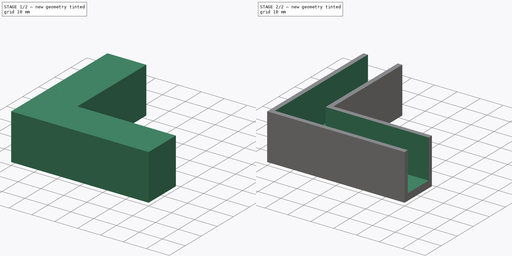
[diagram: build sequence overview — one tinted view per stage of 2, left to right]
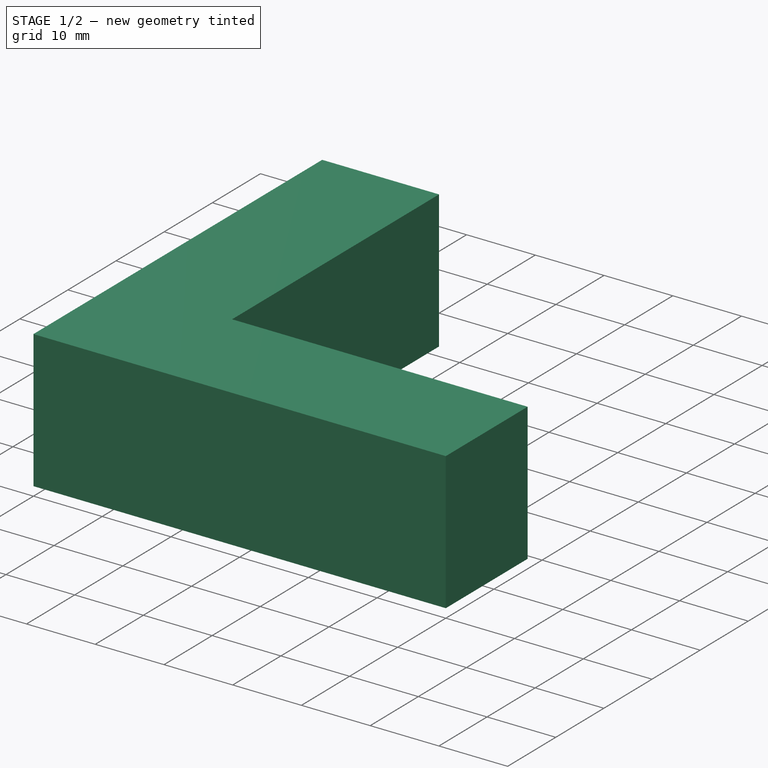
[diagram: stage 1 of 2 — iso view after this stage's code; geometry added in this stage tinted green]
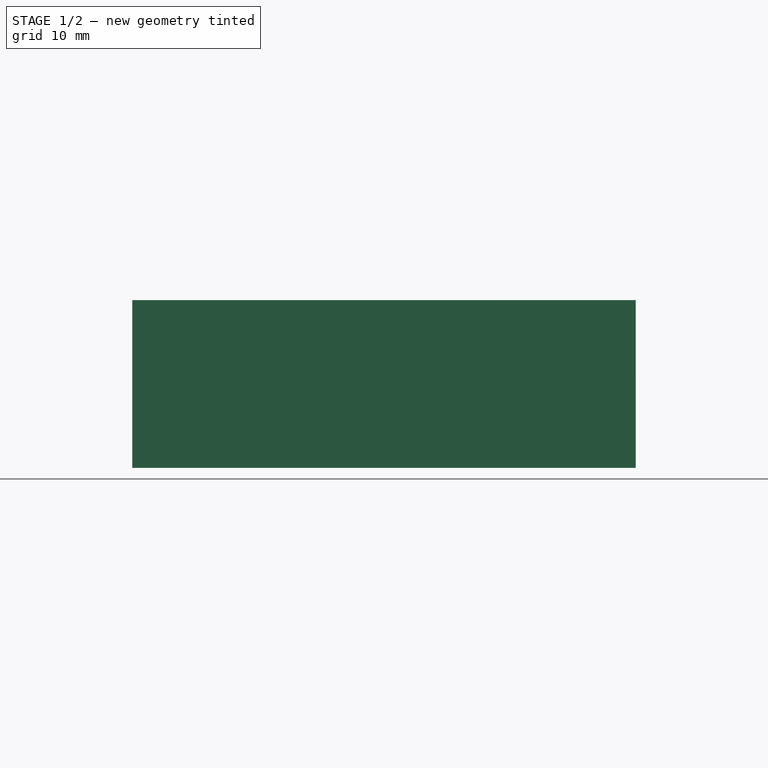
[diagram: stage 1 of 2 — front view after this stage's code; geometry added in this stage tinted green]
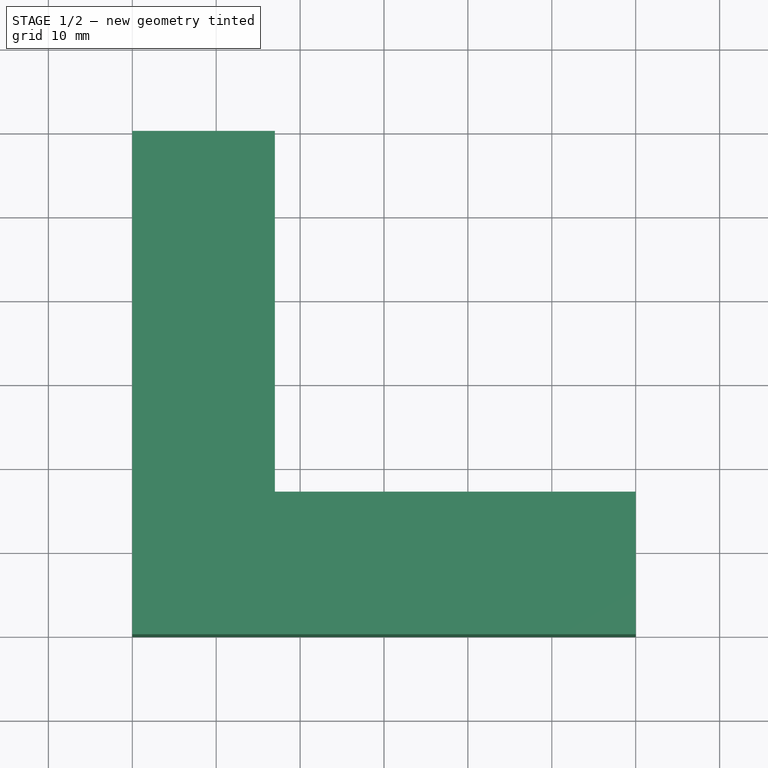
[diagram: stage 1 of 2 — top view after this stage's code; geometry added in this stage tinted green]
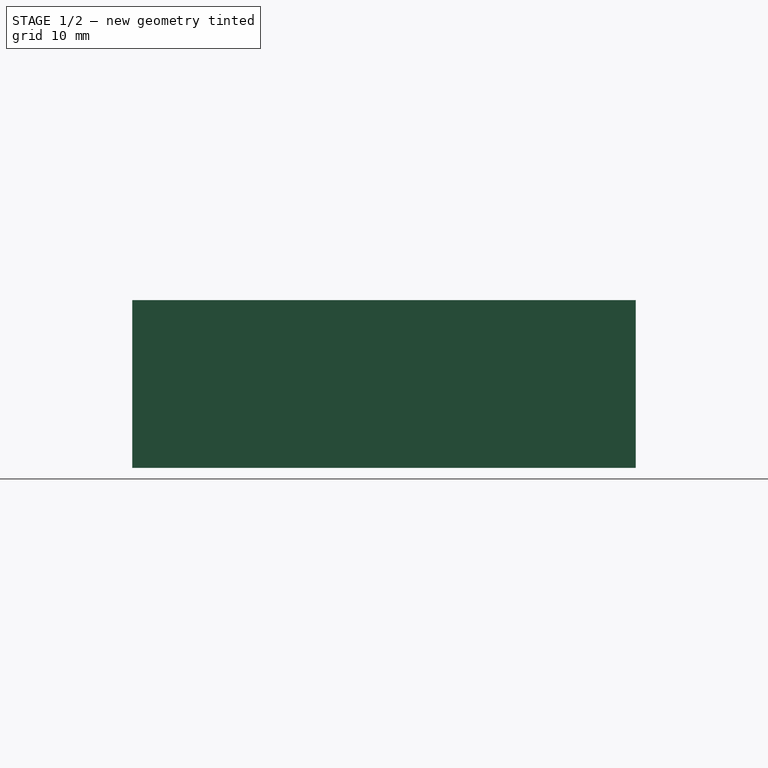
[diagram: stage 1 of 2 — right view after this stage's code; geometry added in this stage tinted green]
FCSTD DOCUMENT
Label: printercasefeet
objects: Sketcher::SketchObject×2, PartDesign::Pad×1, PartDesign::Pocket×1
note: 5 computed .brp shape members not serialized (recipe doc carries the construction recipe); baked Part::Feature solids carry a one-line shape summary decoded from their .brp

FEATURE [Sketcher::SketchObject] Sketch
  sketch-geometry (6):
    g0: LineSegment StartX=0 StartY=60 StartZ=0 EndX=0 EndY=0 EndZ=0
    g1: LineSegment StartX=0 StartY=0 StartZ=0 EndX=60 EndY=0 EndZ=0
    g2: LineSegment StartX=60 StartY=0 StartZ=0 EndX=60 EndY=17 EndZ=0
    g3: LineSegment StartX=60 StartY=17 StartZ=0 EndX=17 EndY=17 EndZ=0
    g4: LineSegment StartX=17 StartY=17 StartZ=0 EndX=17 EndY=60 EndZ=0
    g5: LineSegment StartX=17 StartY=60 StartZ=0 EndX=0 EndY=60 EndZ=0
  constraints (18):
    c: Vertical(g0)
    c: Coincident(g0,g1)
    c: Horizontal(g1)
    c: Coincident(g1,g2)
    c: Vertical(g2)
    c: Coincident(g2,g3)
    c: Horizontal(g3)
    c: Coincident(g3,g4)
    c: Vertical(g4)
    c: Coincident(g4,g5)
    c: Coincident(g0,g5)
    c: DistanceX(g0) = 0
    c: DistanceY(g0) = 0
    c: Equal(g0,g1)
    c: Horizontal(g5)
    c: Equal(g5,g2)
    c: DistanceX(g5) = -17
    c: DistanceY(g0) = -60
FEATURE [PartDesign::Pad] Pad
  Length = 20
  MirroredExtent = false
  Sketch = -> Sketch
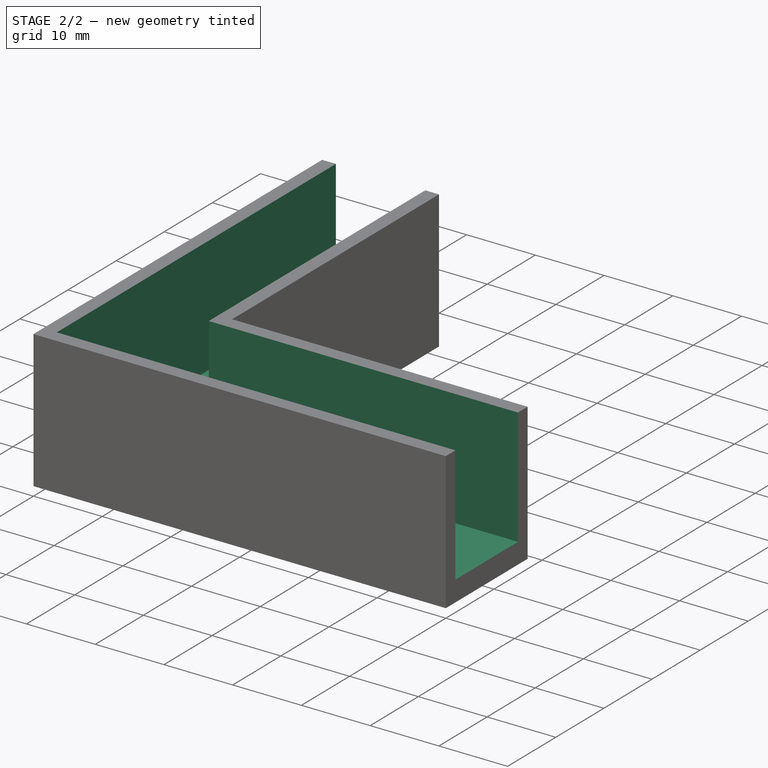
[diagram: stage 2 of 2 — iso view after this stage's code; geometry added in this stage tinted green]
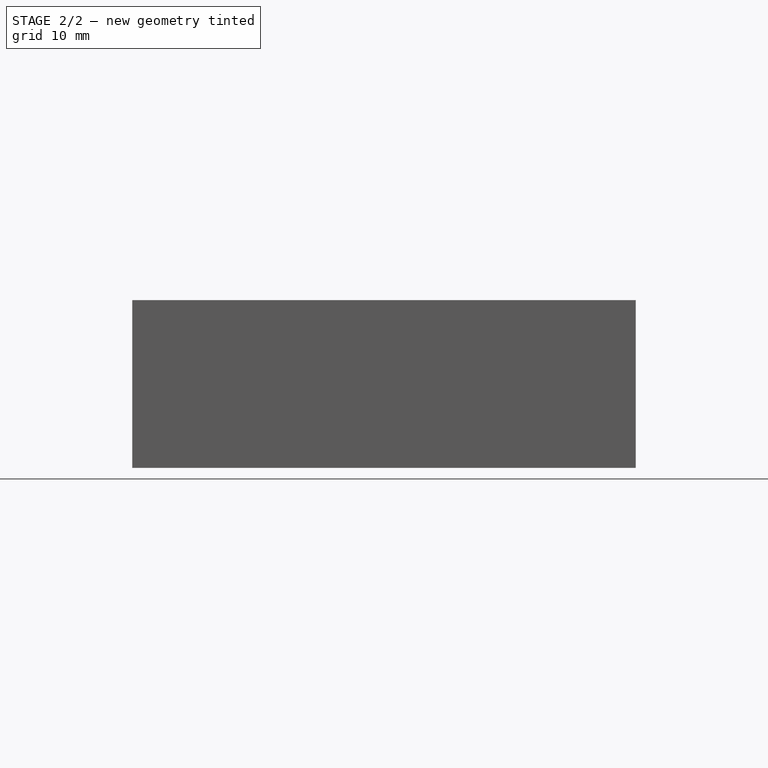
[diagram: stage 2 of 2 — front view after this stage's code; geometry added in this stage tinted green]
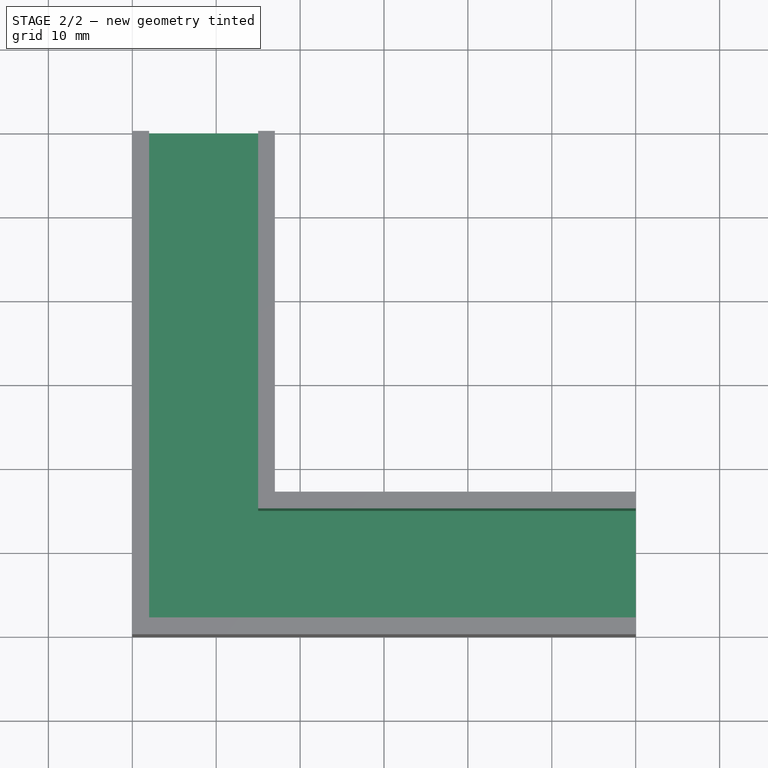
[diagram: stage 2 of 2 — top view after this stage's code; geometry added in this stage tinted green]
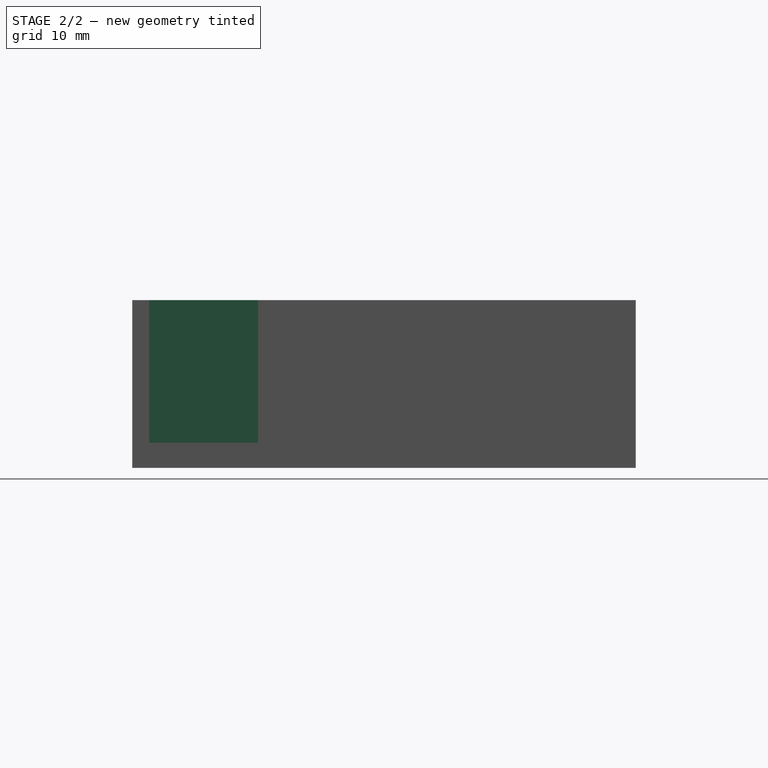
[diagram: stage 2 of 2 — right view after this stage's code; geometry added in this stage tinted green]
FEATURE [Sketcher::SketchObject] Sketch001
  Placement = pos=(0,0,20) rot=(0,0,1;0rad)
  Support = -> Pad [Face8]
  sketch-geometry (6):
    g0: LineSegment StartX=2 StartY=2 StartZ=0 EndX=2 EndY=60 EndZ=0
    g1: LineSegment StartX=2 StartY=60 StartZ=0 EndX=15 EndY=60 EndZ=0
    g2: LineSegment StartX=15 StartY=60 StartZ=0 EndX=15 EndY=15 EndZ=0
    g3: LineSegment StartX=15 StartY=15 StartZ=0 EndX=60 EndY=15 EndZ=0
    g4: LineSegment StartX=60 StartY=15 StartZ=0 EndX=60 EndY=2 EndZ=0
    g5: LineSegment StartX=60 StartY=2 StartZ=0 EndX=2 EndY=2 EndZ=0
  constraints (18):
    c: Vertical(g0)
    c: Coincident(g0,g1)
    c: Horizontal(g1)
    c: Coincident(g1,g2)
    c: Vertical(g2)
    c: Coincident(g2,g3)
    c: Horizontal(g3)
    c: Coincident(g3,g4)
    c: Vertical(g4)
    c: Coincident(g4,g5)
    c: Horizontal(g5)
    c: Coincident(g0,g5)
    c: DistanceX(g1) = 13
    c: Equal(g1,g4)
    c: Equal(g0,g5)
    c: DistanceX(g0) = 2
    c: DistanceY(g0) = 2
    c: DistanceY(g0) = 58
FEATURE [PartDesign::Pocket] Pocket
  Length = 17
  Sketch = -> Sketch001
  Type = 0
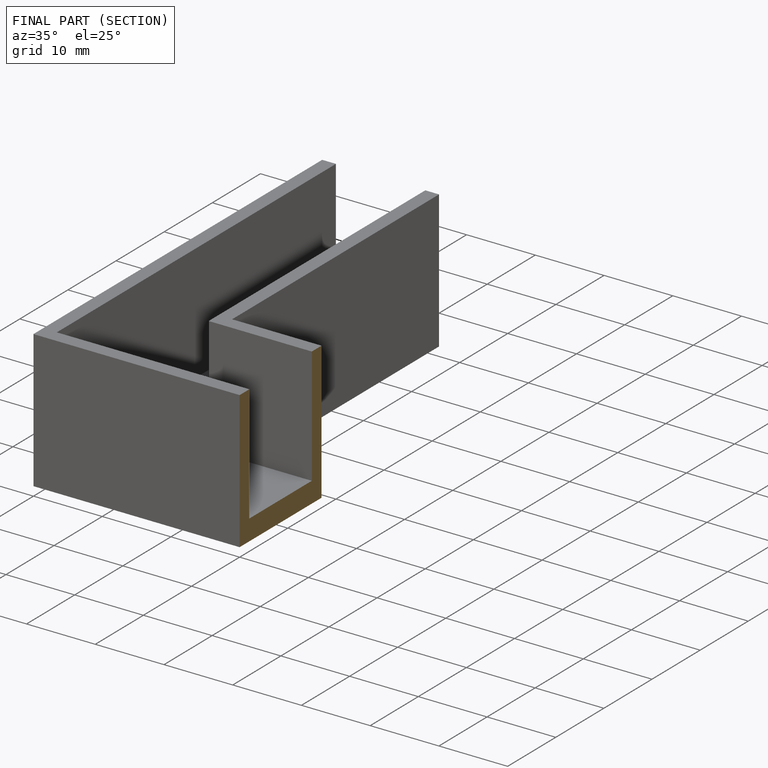
[diagram: finished part — half-section view (interior)]
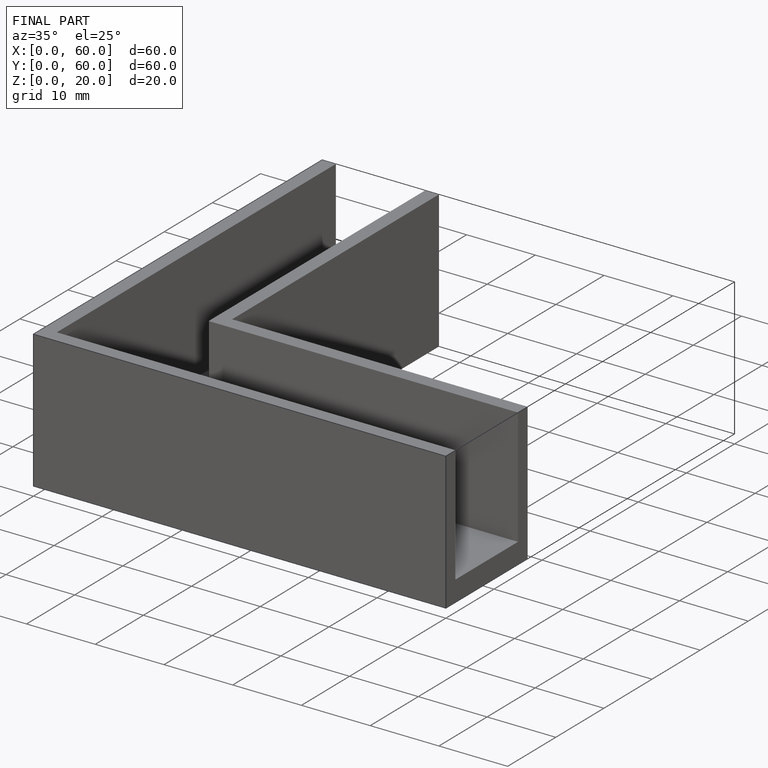
[diagram: finished part — iso view with bounding-box wireframe]
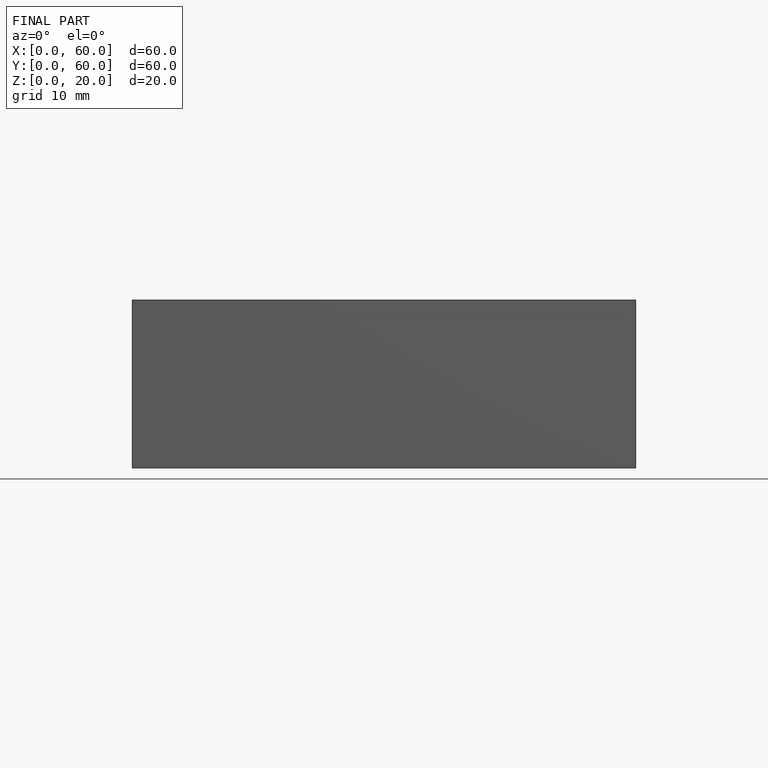
[diagram: finished part — front view with bounding-box wireframe]
